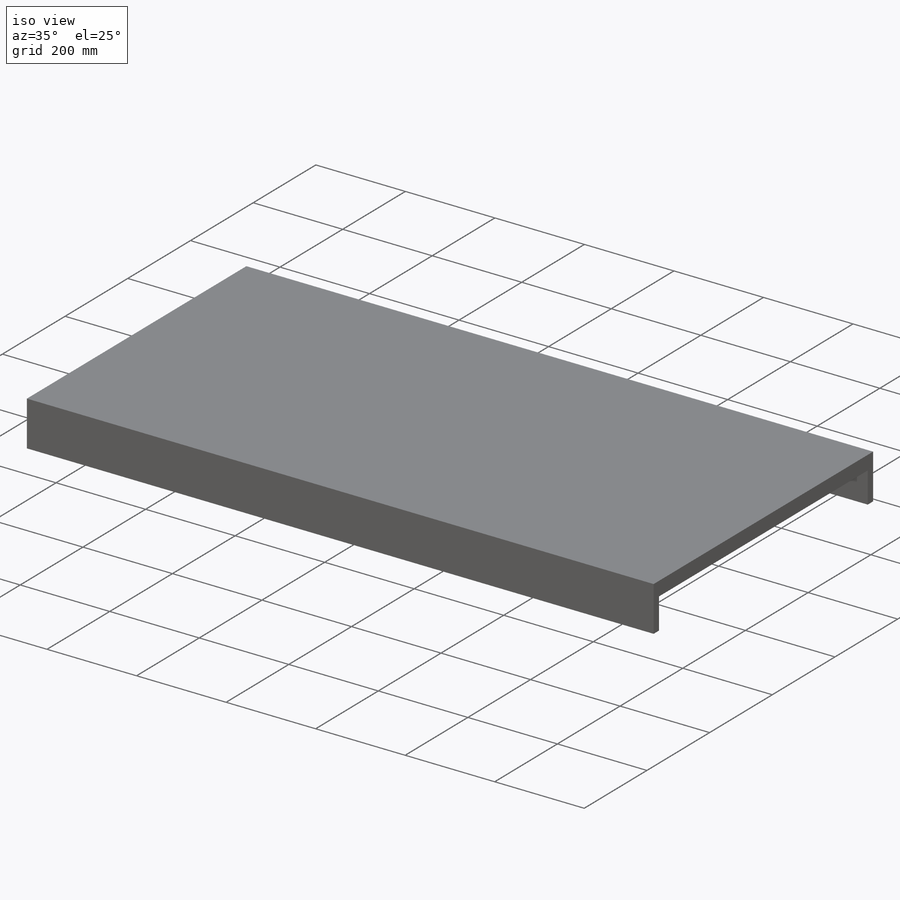
[diagram: iso view]
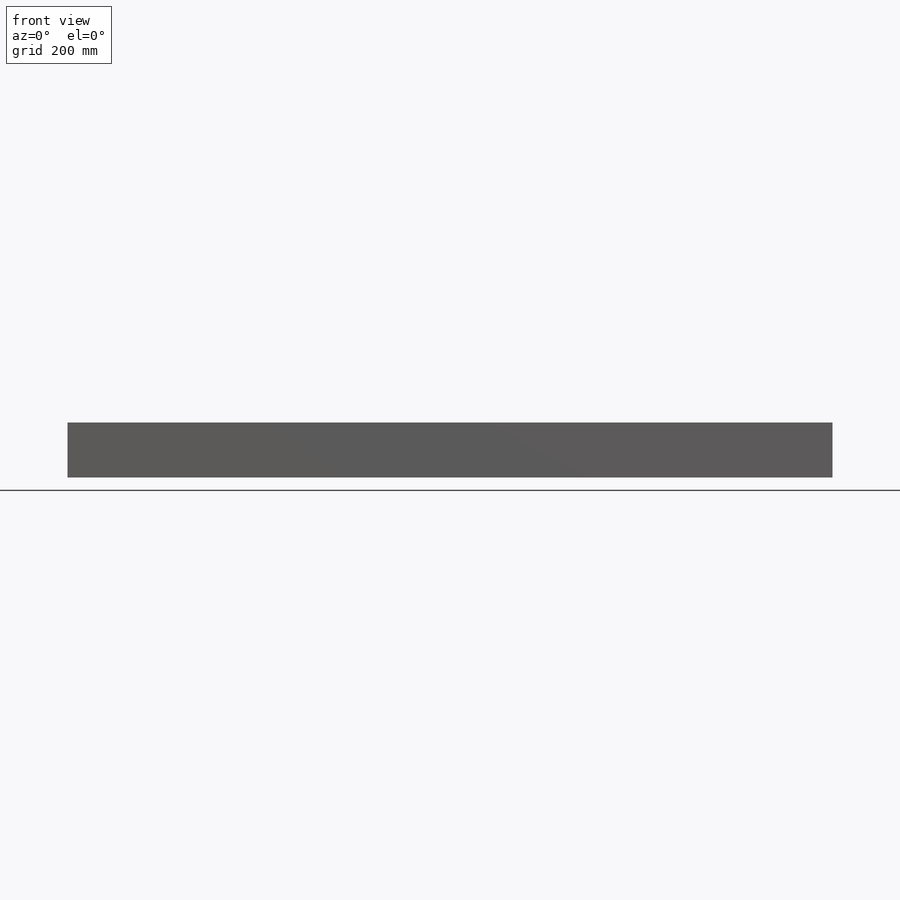
[diagram: front view]
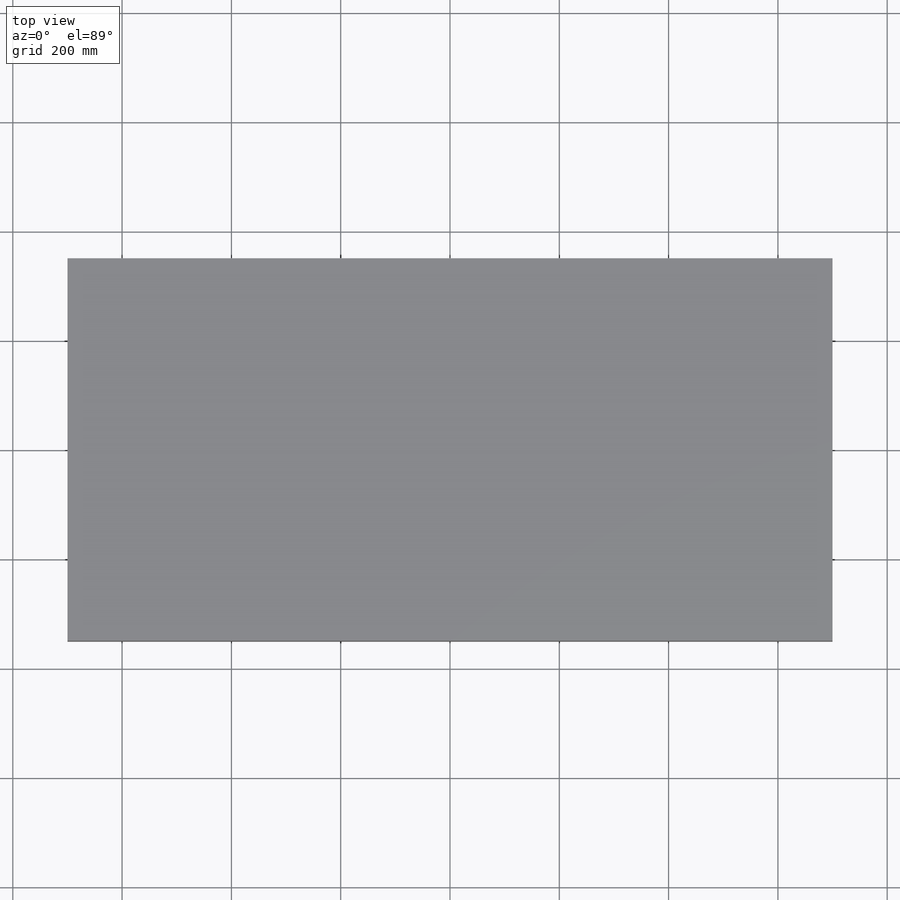
[diagram: top view]
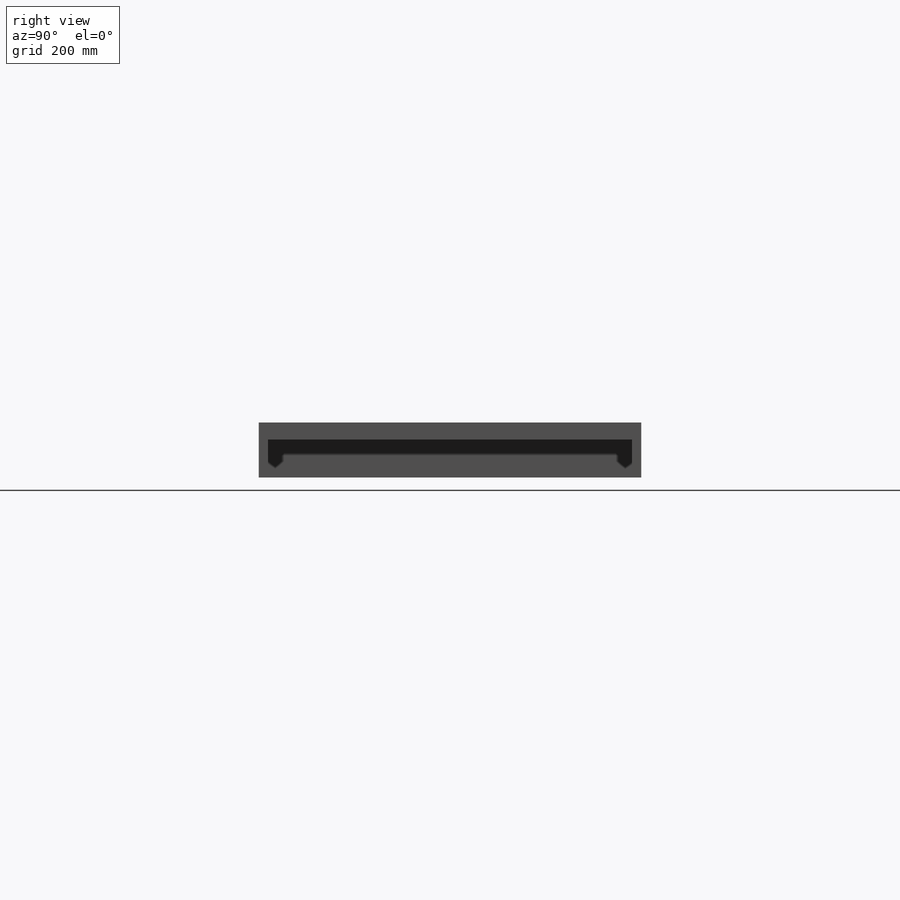
[diagram: right view]
SOLIDWORKS PART (.sldprt)
format: sldprt  version: not decoded by parser v0  size: 481,792 bytes
history: native  units: mm
features: sketch x4, extrude x4, material x1 (+11 scaffold rows collapsed)
feature tree (20):
  scaffold x11  (default folders/planes/origin — collapsed)
  material  "Pine"
  sketch  "Sketch1"  dims[D1=1400.0mm D2=700.0mm D3=700.0mm D4=350.0mm]
  extrude  "Boss-Extrude1"  Depth=19mm
  sketch  "Sketch2"  dims[D1=0.0mm]
  extrude  "Boss-Extrude2"  Depth=12.5mm
  sketch  "Sketch3"  dims[D1=69.0mm D2=17.0mm]
  extrude  "Boss-Extrude3"  [1 undecoded]
  sketch  "Sketch4"  dims[c1.D1=12.5mm c1.D2=6.25mm c2.D1=12.5mm c2.D2=6.25mm c3.D1=12.5mm c3.D2=6.25mm c3.D3=337.5mm c3.D4=337.5mm c4.D4=2.0]
  extrude  "Boss-Extrude4"  [1 undecoded]
decode coverage: 6 of 8 modeling features carry decoded parameters
note: 2 parameter values undecoded
note: suppression state not decoded; provenance and decode notes live in map.json
